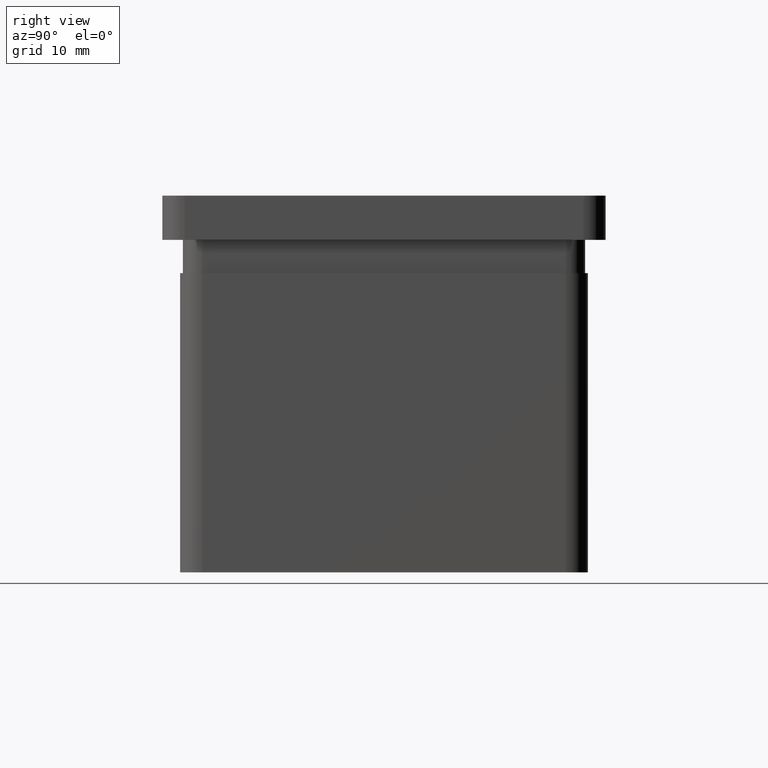
[diagram: clean part render]
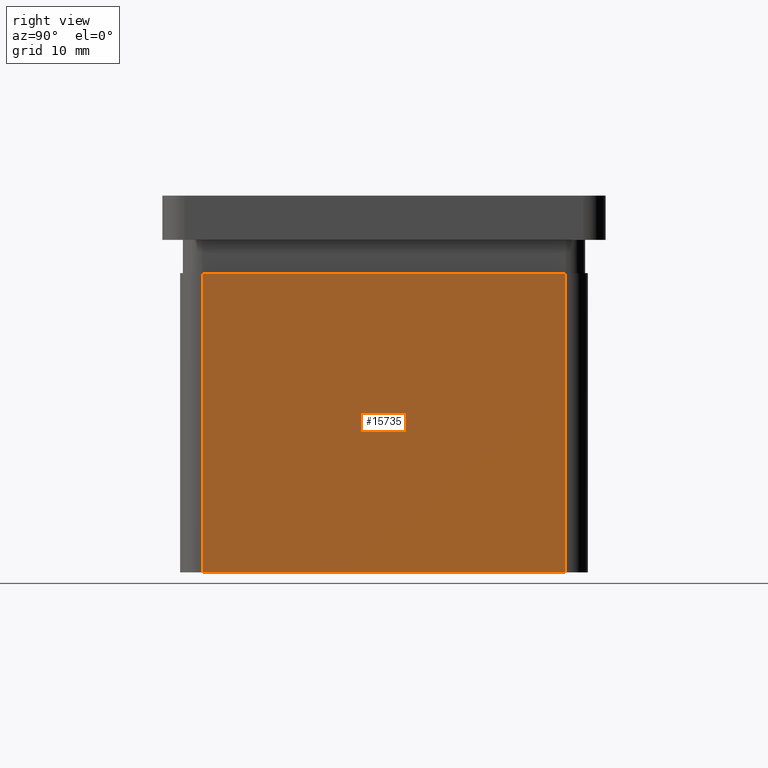
[diagram: same view with one face highlighted and labeled with its STEP entity id]
A machine part, right view. The second image highlights one B-rep face of the part: STEP entity #15735.
In plain terms, the highlighted planar face has unit normal (-1, 0, -0).
Its self-contained STEP definition (entity closure, byte-faithful):
#106 = EDGE_CURVE ( 'NONE', #14765, #11652, #12907, .T. ) ;
#1619 = EDGE_LOOP ( 'NONE', ( #14782, #6616, #4609, #15702 ) ) ;
#1716 = EDGE_CURVE ( 'NONE', #2844, #11652, #12472, .T. ) ;
#2169 = EDGE_CURVE ( 'NONE', #2844, #8051, #6110, .T. ) ;
#2294 = DIRECTION ( 'NONE',  ( -0.000000000000000000, -0.000000000000000000, 1.000000000000000000 ) ) ;
#2422 = VECTOR ( 'NONE', #4335, 1000.000000000000000 ) ;
#2844 = VERTEX_POINT ( 'NONE', #11752 ) ;
#2918 = DIRECTION ( 'NONE',  ( -1.000000000000000000, 0.000000000000000000, -0.000000000000000000 ) ) ;
#3159 = VECTOR ( 'NONE', #14666, 1000.000000000000000 ) ;
#4335 = DIRECTION ( 'NONE',  ( 0.000000000000000000, 1.000000000000000000, 0.000000000000000000 ) ) ;
#4609 = ORIENTED_EDGE ( 'NONE', *, *, #2169, .F. ) ;
#4623 = CARTESIAN_POINT ( 'NONE',  ( 18.39999999999999858, -16.40000000000000924, -34.00000000000000000 ) ) ;
#4839 = CARTESIAN_POINT ( 'NONE',  ( 18.39999999999999858, 16.40000000000000568, -34.00000000000000000 ) ) ;
#5803 = CARTESIAN_POINT ( 'NONE',  ( 18.39999999999999858, 16.40000000000000568, -34.00000000000000000 ) ) ;
#6110 = LINE ( 'NONE', #5803, #3159 ) ;
#6616 = ORIENTED_EDGE ( 'NONE', *, *, #15366, .F. ) ;
#8051 = VERTEX_POINT ( 'NONE', #4623 ) ;
#8905 = CARTESIAN_POINT ( 'NONE',  ( 18.39999999999999858, -16.40000000000000213, -7.000000000000001776 ) ) ;
#9023 = CARTESIAN_POINT ( 'NONE',  ( 18.39999999999999858, 16.40000000000000568, -7.000000000000001776 ) ) ;
#9156 = CARTESIAN_POINT ( 'NONE',  ( 18.39999999999999858, -16.40000000000000924, -34.00000000000000000 ) ) ;
#9326 = PLANE ( 'NONE',  #15730 ) ;
#11652 = VERTEX_POINT ( 'NONE', #9023 ) ;
#11752 = CARTESIAN_POINT ( 'NONE',  ( 18.39999999999999858, 16.40000000000000568, -34.00000000000000000 ) ) ;
#11763 = DIRECTION ( 'NONE',  ( -0.000000000000000000, 0.000000000000000000, 1.000000000000000000 ) ) ;
#11811 = FACE_OUTER_BOUND ( 'NONE', #1619, .T. ) ;
#11866 = CARTESIAN_POINT ( 'NONE',  ( 18.39999999999999858, 16.40000000000000568, -6.999999999999999112 ) ) ;
#12472 = LINE ( 'NONE', #4839, #14261 ) ;
#12907 = LINE ( 'NONE', #11866, #2422 ) ;
#14130 = DIRECTION ( 'NONE',  ( -0.000000000000000000, -0.000000000000000000, 1.000000000000000000 ) ) ;
#14261 = VECTOR ( 'NONE', #2294, 1000.000000000000000 ) ;
#14570 = LINE ( 'NONE', #9156, #15562 ) ;
#14666 = DIRECTION ( 'NONE',  ( 0.000000000000000000, -1.000000000000000000, 0.000000000000000000 ) ) ;
#14765 = VERTEX_POINT ( 'NONE', #8905 ) ;
#14782 = ORIENTED_EDGE ( 'NONE', *, *, #106, .F. ) ;
#15366 = EDGE_CURVE ( 'NONE', #8051, #14765, #14570, .T. ) ;
#15562 = VECTOR ( 'NONE', #14130, 1000.000000000000000 ) ;
#15702 = ORIENTED_EDGE ( 'NONE', *, *, #1716, .T. ) ;
#15730 = AXIS2_PLACEMENT_3D ( 'NONE', #15766, #2918, #11763 ) ;
#15735 = ADVANCED_FACE ( 'NONE', ( #11811 ), #9326, .F. ) ;
#15766 = CARTESIAN_POINT ( 'NONE',  ( 18.39999999999999858, 16.40000000000000568, -34.00000000000000000 ) ) ;